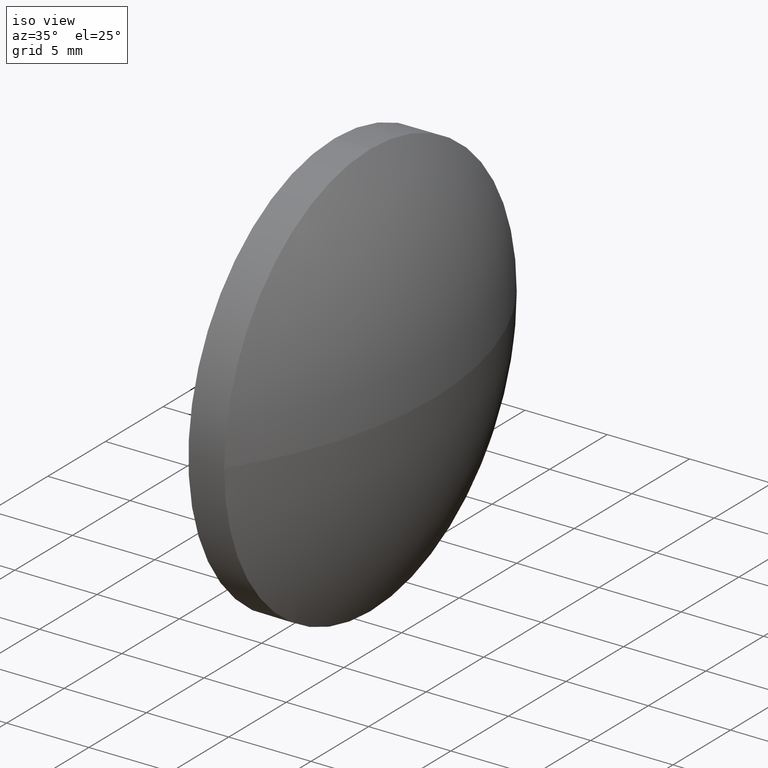
[diagram: clean part render]
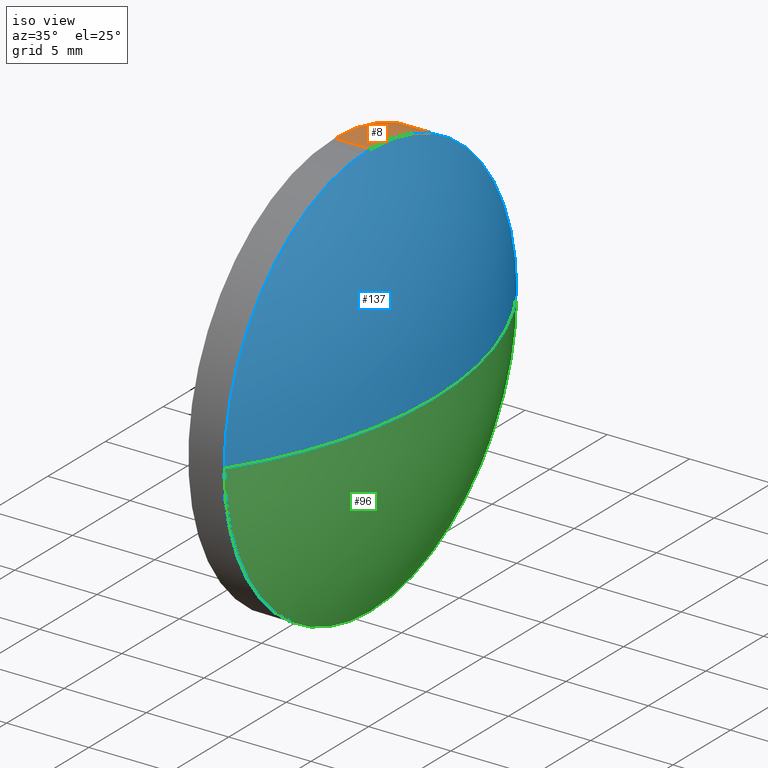
[diagram: same view with three faces highlighted in distinct colors, each labeled with its STEP entity id]
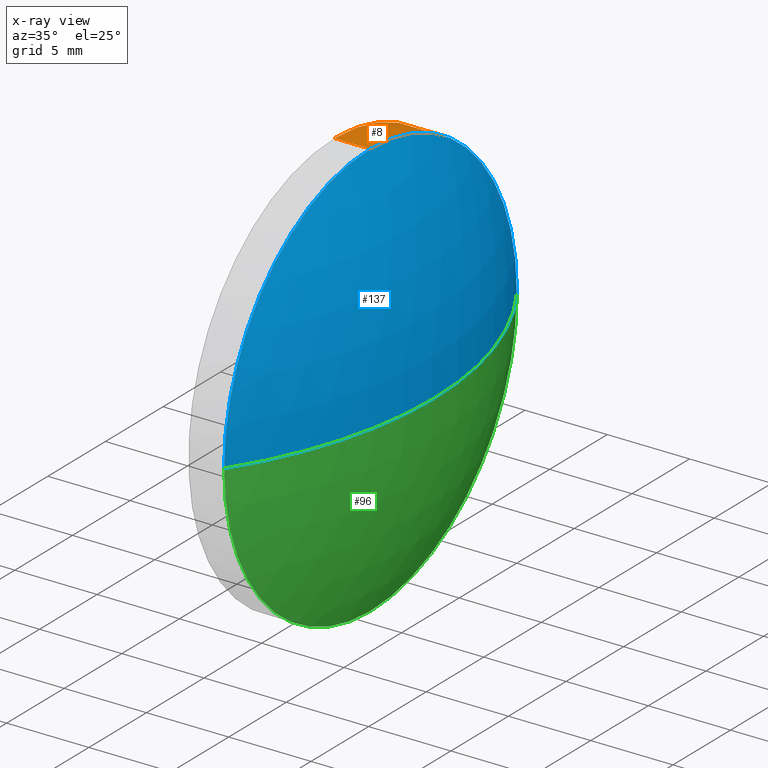
[diagram: x-ray of the same camera — body ghosted, the three highlighted faces saturated]
A machine part, iso view with three faces highlighted in distinct colors.
The next image is the same camera in x-ray (body ghosted, the three faces saturated) — at least one of them is partly hidden behind the body in this view.
Their STEP definitions:

[orange] entity #8 — the highlighted cylindrical surface (partial cylindrical patch) has radius 12.7 mm, axis along (1, -0, -0).
#1 = EDGE_CURVE ( 'NONE', #87, #2, #65, .T. ) ;
#2 = VERTEX_POINT ( 'NONE', #70 ) ;
#3 = CARTESIAN_POINT ( 'NONE',  ( 117.9493723868566800, 77.93355492641219900, -1.555301434917139000E-015 ) ) ;
#8 = ADVANCED_FACE ( 'NONE', ( #9 ), #136, .T. ) ;
#9 = FACE_OUTER_BOUND ( 'NONE', #45, .T. ) ;
#13 = DIRECTION ( 'NONE',  ( 0.0000000000000000000, 0.0000000000000000000, -1.000000000000000000 ) ) ;
#21 = AXIS2_PLACEMENT_3D ( 'NONE', #100, #114, #85 ) ;
#24 = ORIENTED_EDGE ( 'NONE', *, *, #1, .F. ) ;
#29 = DIRECTION ( 'NONE',  ( 0.0000000000000000000, 0.0000000000000000000, -1.000000000000000000 ) ) ;
#30 = ORIENTED_EDGE ( 'NONE', *, *, #170, .T. ) ;
#33 = LINE ( 'NONE', #73, #109 ) ;
#45 = EDGE_LOOP ( 'NONE', ( #117, #30, #24, #112, #161 ) ) ;
#48 = CIRCLE ( 'NONE', #68, 12.70000000000000300 ) ;
#52 = CARTESIAN_POINT ( 'NONE',  ( 115.7736064308381300, 65.23355492641219700, 12.70000000000000300 ) ) ;
#58 = VERTEX_POINT ( 'NONE', #52 ) ;
#59 = CARTESIAN_POINT ( 'NONE',  ( 117.9493723868566800, 65.23355492641219700, -12.70000000000000300 ) ) ;
#61 = EDGE_CURVE ( 'NONE', #169, #58, #48, .T. ) ;
#65 = CIRCLE ( 'NONE', #81, 12.70000000000000300 ) ;
#68 = AXIS2_PLACEMENT_3D ( 'NONE', #151, #160, #158 ) ;
#70 = CARTESIAN_POINT ( 'NONE',  ( 117.9493723868566800, 65.23355492641219700, 12.70000000000000300 ) ) ;
#73 = CARTESIAN_POINT ( 'NONE',  ( 121.7736064308381300, 65.23355492641219700, -12.70000000000000300 ) ) ;
#74 = CARTESIAN_POINT ( 'NONE',  ( 115.7736064308381300, 65.23355492641219700, -12.70000000000000300 ) ) ;
#76 = DIRECTION ( 'NONE',  ( 1.000000000000000000, -0.0000000000000000000, -0.0000000000000000000 ) ) ;
#81 = AXIS2_PLACEMENT_3D ( 'NONE', #145, #143, #13 ) ;
#85 = DIRECTION ( 'NONE',  ( 0.0000000000000000000, 0.0000000000000000000, -1.000000000000000000 ) ) ;
#87 = VERTEX_POINT ( 'NONE', #3 ) ;
#88 = CARTESIAN_POINT ( 'NONE',  ( 117.9493723868566800, 65.23355492641219700, 0.0000000000000000000 ) ) ;
#92 = DIRECTION ( 'NONE',  ( 1.000000000000000000, -0.0000000000000000000, -0.0000000000000000000 ) ) ;
#98 = AXIS2_PLACEMENT_3D ( 'NONE', #88, #129, #29 ) ;
#100 = CARTESIAN_POINT ( 'NONE',  ( 121.7736064308381300, 65.23355492641219700, 0.0000000000000000000 ) ) ;
#109 = VECTOR ( 'NONE', #92, 1000.000000000000000 ) ;
#112 = ORIENTED_EDGE ( 'NONE', *, *, #138, .F. ) ;
#114 = DIRECTION ( 'NONE',  ( 1.000000000000000000, -0.0000000000000000000, -0.0000000000000000000 ) ) ;
#116 = CARTESIAN_POINT ( 'NONE',  ( 121.7736064308381300, 65.23355492641219700, 12.70000000000000300 ) ) ;
#117 = ORIENTED_EDGE ( 'NONE', *, *, #61, .T. ) ;
#119 = CIRCLE ( 'NONE', #98, 12.70000000000000300 ) ;
#129 = DIRECTION ( 'NONE',  ( 1.000000000000000000, -0.0000000000000000000, -0.0000000000000000000 ) ) ;
#136 = CYLINDRICAL_SURFACE ( 'NONE', #21, 12.70000000000000300 ) ;
#138 = EDGE_CURVE ( 'NONE', #140, #87, #119, .T. ) ;
#139 = VECTOR ( 'NONE', #76, 1000.000000000000000 ) ;
#140 = VERTEX_POINT ( 'NONE', #59 ) ;
#142 = EDGE_CURVE ( 'NONE', #169, #140, #33, .T. ) ;
#143 = DIRECTION ( 'NONE',  ( 1.000000000000000000, -0.0000000000000000000, -0.0000000000000000000 ) ) ;
#144 = LINE ( 'NONE', #116, #139 ) ;
#145 = CARTESIAN_POINT ( 'NONE',  ( 117.9493723868566800, 65.23355492641219700, 0.0000000000000000000 ) ) ;
#151 = CARTESIAN_POINT ( 'NONE',  ( 115.7736064308381300, 65.23355492641219700, 0.0000000000000000000 ) ) ;
#158 = DIRECTION ( 'NONE',  ( 0.0000000000000000000, 0.0000000000000000000, -1.000000000000000000 ) ) ;
#160 = DIRECTION ( 'NONE',  ( 1.000000000000000000, -0.0000000000000000000, -0.0000000000000000000 ) ) ;
#161 = ORIENTED_EDGE ( 'NONE', *, *, #142, .F. ) ;
#169 = VERTEX_POINT ( 'NONE', #74 ) ;
#170 = EDGE_CURVE ( 'NONE', #58, #2, #144, .T. ) ;

[blue] entity #137 — the highlighted spherical surface has radius 23 mm.
#1 = EDGE_CURVE ( 'NONE', #87, #2, #65, .T. ) ;
#2 = VERTEX_POINT ( 'NONE', #70 ) ;
#3 = CARTESIAN_POINT ( 'NONE',  ( 117.9493723868566800, 77.93355492641219900, -1.555301434917139000E-015 ) ) ;
#6 = CIRCLE ( 'NONE', #124, 23.00000000000000700 ) ;
#13 = DIRECTION ( 'NONE',  ( 0.0000000000000000000, 0.0000000000000000000, -1.000000000000000000 ) ) ;
#19 = ORIENTED_EDGE ( 'NONE', *, *, #66, .T. ) ;
#39 = VERTEX_POINT ( 'NONE', #113 ) ;
#42 = DIRECTION ( 'NONE',  ( 0.0000000000000000000, 1.000000000000000000, -1.224646799147353200E-016 ) ) ;
#53 = ORIENTED_EDGE ( 'NONE', *, *, #63, .T. ) ;
#57 = CARTESIAN_POINT ( 'NONE',  ( 98.77360643083812900, 65.23355492641219700, 0.0000000000000000000 ) ) ;
#63 = EDGE_CURVE ( 'NONE', #39, #133, #167, .T. ) ;
#65 = CIRCLE ( 'NONE', #81, 12.70000000000000300 ) ;
#66 = EDGE_CURVE ( 'NONE', #2, #39, #121, .T. ) ;
#69 = SPHERICAL_SURFACE ( 'NONE', #84, 23.00000000000000700 ) ;
#70 = CARTESIAN_POINT ( 'NONE',  ( 117.9493723868566800, 65.23355492641219700, 12.70000000000000300 ) ) ;
#72 = ORIENTED_EDGE ( 'NONE', *, *, #174, .F. ) ;
#79 = AXIS2_PLACEMENT_3D ( 'NONE', #162, #118, #177 ) ;
#81 = AXIS2_PLACEMENT_3D ( 'NONE', #145, #143, #13 ) ;
#84 = AXIS2_PLACEMENT_3D ( 'NONE', #57, #178, #104 ) ;
#87 = VERTEX_POINT ( 'NONE', #3 ) ;
#89 = AXIS2_PLACEMENT_3D ( 'NONE', #105, #179, #128 ) ;
#91 = DIRECTION ( 'NONE',  ( -0.0000000000000000000, -1.224646799147353200E-016, -1.000000000000000000 ) ) ;
#104 = DIRECTION ( 'NONE',  ( 0.0000000000000000000, -1.000000000000000000, 0.0000000000000000000 ) ) ;
#105 = CARTESIAN_POINT ( 'NONE',  ( 98.77360643083812900, 65.23355492641219700, 0.0000000000000000000 ) ) ;
#106 = ORIENTED_EDGE ( 'NONE', *, *, #1, .T. ) ;
#113 = CARTESIAN_POINT ( 'NONE',  ( 117.9493723868566800, 52.53355492641219400, 0.0000000000000000000 ) ) ;
#118 = DIRECTION ( 'NONE',  ( 1.000000000000000000, -0.0000000000000000000, -0.0000000000000000000 ) ) ;
#121 = CIRCLE ( 'NONE', #79, 12.70000000000000300 ) ;
#124 = AXIS2_PLACEMENT_3D ( 'NONE', #131, #91, #42 ) ;
#128 = DIRECTION ( 'NONE',  ( 1.000000000000000000, 0.0000000000000000000, 0.0000000000000000000 ) ) ;
#131 = CARTESIAN_POINT ( 'NONE',  ( 98.77360643083812900, 65.23355492641219700, 0.0000000000000000000 ) ) ;
#133 = VERTEX_POINT ( 'NONE', #150 ) ;
#137 = ADVANCED_FACE ( 'NONE', ( #152 ), #69, .T. ) ;
#143 = DIRECTION ( 'NONE',  ( 1.000000000000000000, -0.0000000000000000000, -0.0000000000000000000 ) ) ;
#145 = CARTESIAN_POINT ( 'NONE',  ( 117.9493723868566800, 65.23355492641219700, 0.0000000000000000000 ) ) ;
#149 = EDGE_LOOP ( 'NONE', ( #72, #106, #19, #53 ) ) ;
#150 = CARTESIAN_POINT ( 'NONE',  ( 121.7736064308381300, 65.23355492641219700, 0.0000000000000000000 ) ) ;
#152 = FACE_OUTER_BOUND ( 'NONE', #149, .T. ) ;
#162 = CARTESIAN_POINT ( 'NONE',  ( 117.9493723868566800, 65.23355492641219700, 0.0000000000000000000 ) ) ;
#167 = CIRCLE ( 'NONE', #89, 23.00000000000000700 ) ;
#174 = EDGE_CURVE ( 'NONE', #87, #133, #6, .T. ) ;
#177 = DIRECTION ( 'NONE',  ( 0.0000000000000000000, 0.0000000000000000000, -1.000000000000000000 ) ) ;
#178 = DIRECTION ( 'NONE',  ( 0.0000000000000000000, -0.0000000000000000000, -1.000000000000000000 ) ) ;
#179 = DIRECTION ( 'NONE',  ( 0.0000000000000000000, 0.0000000000000000000, 1.000000000000000000 ) ) ;

[green] entity #96 — the highlighted spherical surface has radius 23 mm.
#3 = CARTESIAN_POINT ( 'NONE',  ( 117.9493723868566800, 77.93355492641219900, -1.555301434917139000E-015 ) ) ;
#6 = CIRCLE ( 'NONE', #124, 23.00000000000000700 ) ;
#11 = CARTESIAN_POINT ( 'NONE',  ( 117.9493723868566800, 65.23355492641219700, 0.0000000000000000000 ) ) ;
#12 = SPHERICAL_SURFACE ( 'NONE', #110, 23.00000000000000700 ) ;
#25 = FACE_OUTER_BOUND ( 'NONE', #180, .T. ) ;
#27 = DIRECTION ( 'NONE',  ( 1.000000000000000000, -0.0000000000000000000, -0.0000000000000000000 ) ) ;
#29 = DIRECTION ( 'NONE',  ( 0.0000000000000000000, 0.0000000000000000000, -1.000000000000000000 ) ) ;
#39 = VERTEX_POINT ( 'NONE', #113 ) ;
#41 = DIRECTION ( 'NONE',  ( 0.0000000000000000000, 0.0000000000000000000, -1.000000000000000000 ) ) ;
#42 = DIRECTION ( 'NONE',  ( 0.0000000000000000000, 1.000000000000000000, -1.224646799147353200E-016 ) ) ;
#49 = EDGE_CURVE ( 'NONE', #39, #140, #125, .T. ) ;
#59 = CARTESIAN_POINT ( 'NONE',  ( 117.9493723868566800, 65.23355492641219700, -12.70000000000000300 ) ) ;
#63 = EDGE_CURVE ( 'NONE', #39, #133, #167, .T. ) ;
#71 = DIRECTION ( 'NONE',  ( 0.0000000000000000000, -0.0000000000000000000, -1.000000000000000000 ) ) ;
#75 = AXIS2_PLACEMENT_3D ( 'NONE', #11, #27, #41 ) ;
#86 = ORIENTED_EDGE ( 'NONE', *, *, #63, .F. ) ;
#87 = VERTEX_POINT ( 'NONE', #3 ) ;
#88 = CARTESIAN_POINT ( 'NONE',  ( 117.9493723868566800, 65.23355492641219700, 0.0000000000000000000 ) ) ;
#89 = AXIS2_PLACEMENT_3D ( 'NONE', #105, #179, #128 ) ;
#91 = DIRECTION ( 'NONE',  ( -0.0000000000000000000, -1.224646799147353200E-016, -1.000000000000000000 ) ) ;
#96 = ADVANCED_FACE ( 'NONE', ( #25 ), #12, .T. ) ;
#97 = ORIENTED_EDGE ( 'NONE', *, *, #138, .T. ) ;
#98 = AXIS2_PLACEMENT_3D ( 'NONE', #88, #129, #29 ) ;
#101 = ORIENTED_EDGE ( 'NONE', *, *, #174, .T. ) ;
#103 = DIRECTION ( 'NONE',  ( 0.0000000000000000000, -1.000000000000000000, 0.0000000000000000000 ) ) ;
#105 = CARTESIAN_POINT ( 'NONE',  ( 98.77360643083812900, 65.23355492641219700, 0.0000000000000000000 ) ) ;
#110 = AXIS2_PLACEMENT_3D ( 'NONE', #175, #71, #103 ) ;
#113 = CARTESIAN_POINT ( 'NONE',  ( 117.9493723868566800, 52.53355492641219400, 0.0000000000000000000 ) ) ;
#119 = CIRCLE ( 'NONE', #98, 12.70000000000000300 ) ;
#122 = ORIENTED_EDGE ( 'NONE', *, *, #49, .T. ) ;
#124 = AXIS2_PLACEMENT_3D ( 'NONE', #131, #91, #42 ) ;
#125 = CIRCLE ( 'NONE', #75, 12.70000000000000300 ) ;
#128 = DIRECTION ( 'NONE',  ( 1.000000000000000000, 0.0000000000000000000, 0.0000000000000000000 ) ) ;
#129 = DIRECTION ( 'NONE',  ( 1.000000000000000000, -0.0000000000000000000, -0.0000000000000000000 ) ) ;
#131 = CARTESIAN_POINT ( 'NONE',  ( 98.77360643083812900, 65.23355492641219700, 0.0000000000000000000 ) ) ;
#133 = VERTEX_POINT ( 'NONE', #150 ) ;
#138 = EDGE_CURVE ( 'NONE', #140, #87, #119, .T. ) ;
#140 = VERTEX_POINT ( 'NONE', #59 ) ;
#150 = CARTESIAN_POINT ( 'NONE',  ( 121.7736064308381300, 65.23355492641219700, 0.0000000000000000000 ) ) ;
#167 = CIRCLE ( 'NONE', #89, 23.00000000000000700 ) ;
#174 = EDGE_CURVE ( 'NONE', #87, #133, #6, .T. ) ;
#175 = CARTESIAN_POINT ( 'NONE',  ( 98.77360643083812900, 65.23355492641219700, 0.0000000000000000000 ) ) ;
#179 = DIRECTION ( 'NONE',  ( 0.0000000000000000000, 0.0000000000000000000, 1.000000000000000000 ) ) ;
#180 = EDGE_LOOP ( 'NONE', ( #122, #97, #101, #86 ) ) ;